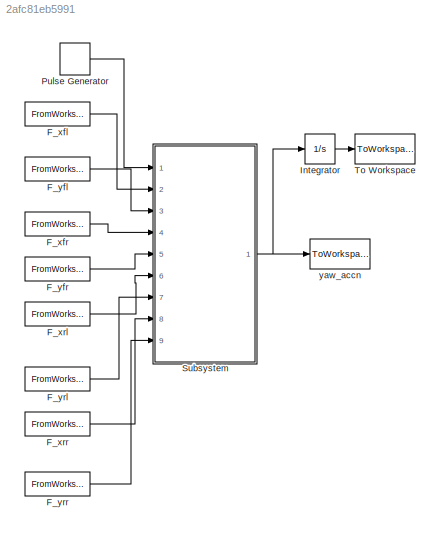
MODEL slx_2afc81eb5991
KIND model
CONFIG AbsTol = auto
CONFIG FixedStep = auto
CONFIG MaxStep = auto
CONFIG MinStep = auto
CONFIG RelTol = 1e-3
CONFIG SampleTimeConstraint = Unconstrained
CONFIG Solver = ode45
CONFIG SolverMode = Auto
CONFIG SolverName = ode45
CONFIG StartTime = 0.0
CONFIG StopTime = 12
BLOCK [FromWorkspace] F_xfl
  SampleTime = 0
  VariableName = F_xfl
  ZeroCross = on
BLOCK [FromWorkspace] F_xfr
  SampleTime = 0
  VariableName = F_xfr
  ZeroCross = on
BLOCK [FromWorkspace] F_xrl
  SampleTime = 0
  VariableName = F_xrl
  ZeroCross = on
BLOCK [FromWorkspace] F_xrr
  SampleTime = 0
  VariableName = F_xrr
  ZeroCross = on
BLOCK [FromWorkspace] F_yfl
  SampleTime = 0
  VariableName = F_yfl
  ZeroCross = on
BLOCK [FromWorkspace] F_yfr
  SampleTime = 0
  VariableName = F_yfr
  ZeroCross = on
BLOCK [FromWorkspace] F_yrl
  SampleTime = 0
  VariableName = F_yrl
  ZeroCross = on
BLOCK [FromWorkspace] F_yrr
  SampleTime = 0
  VariableName = F_yrr
  ZeroCross = on
BLOCK [Integrator] Integrator
  Ports = [1, 1]
BLOCK [DiscretePulseGenerator] Pulse Generator
  Amplitude = 0
  Period = 8
  PhaseDelay = 3
  Ports = [0, 1]
  PulseType = Time based
  PulseWidth = 5
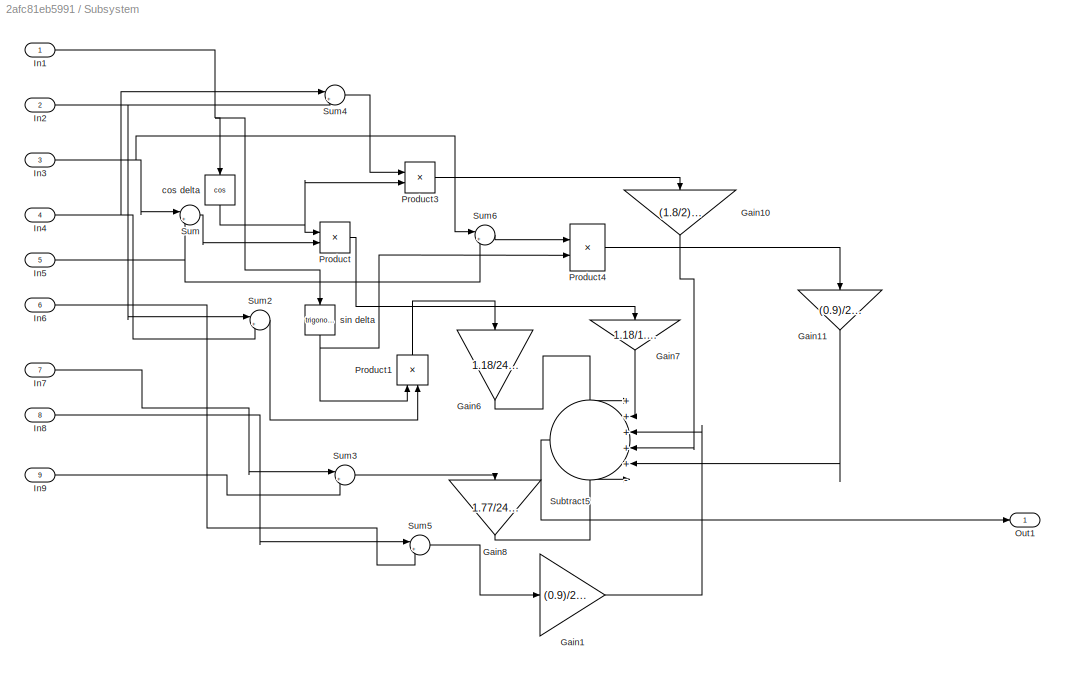
BLOCK [SubSystem] Subsystem
  Ports = [9, 1]
  RequestExecContextInheritance = off
BLOCK [Gain] Subsystem/Gain1
  Gain = (0.9)/2480
  OutDataTypeStr = Inherit: Inherit via internal rule
  ParamDataTypeStr = Inherit: Inherit via internal rule
  SaturateOnIntegerOverflow = off
BLOCK [Gain] Subsystem/Gain10
  Gain = (1.8/2)/2480
  OutDataTypeStr = Inherit: Inherit via internal rule
  ParamDataTypeStr = Inherit: Inherit via internal rule
  SaturateOnIntegerOverflow = off
BLOCK [Gain] Subsystem/Gain11
  Gain = (0.9)/2480
  OutDataTypeStr = Inherit: Inherit via internal rule
  ParamDataTypeStr = Inherit: Inherit via internal rule
  SaturateOnIntegerOverflow = off
BLOCK [Gain] Subsystem/Gain6
  Gain = 1.18/2480
  OutDataTypeStr = Inherit: Inherit via internal rule
  ParamDataTypeStr = Inherit: Inherit via internal rule
  SaturateOnIntegerOverflow = off
BLOCK [Gain] Subsystem/Gain7
  Gain = 1.18/1.77
  OutDataTypeStr = Inherit: Inherit via internal rule
  ParamDataTypeStr = Inherit: Inherit via internal rule
  SaturateOnIntegerOverflow = off
BLOCK [Gain] Subsystem/Gain8
  Gain = 1.77/2480
  OutDataTypeStr = Inherit: Inherit via internal rule
  ParamDataTypeStr = Inherit: Inherit via internal rule
  SaturateOnIntegerOverflow = off
BLOCK [Inport] Subsystem/In1
  IconDisplay = Port number
BLOCK [Inport] Subsystem/In2
  IconDisplay = Port number
  Port = 2
BLOCK [Inport] Subsystem/In3
  IconDisplay = Port number
  Port = 3
BLOCK [Inport] Subsystem/In4
  IconDisplay = Port number
  Port = 4
BLOCK [Inport] Subsystem/In5
  IconDisplay = Port number
  Port = 5
BLOCK [Inport] Subsystem/In6
  IconDisplay = Port number
  Port = 6
BLOCK [Inport] Subsystem/In7
  IconDisplay = Port number
  Port = 7
BLOCK [Inport] Subsystem/In8
  IconDisplay = Port number
  Port = 8
BLOCK [Inport] Subsystem/In9
  IconDisplay = Port number
  Port = 9
BLOCK [Outport] Subsystem/Out1
  IconDisplay = Port number
BLOCK [Product] Subsystem/Product
  InputSameDT = off
  OutDataTypeStr = Inherit: Inherit via internal rule
  Ports = [2, 1]
  RndMeth = Floor
  SaturateOnIntegerOverflow = off
BLOCK [Product] Subsystem/Product1
  InputSameDT = off
  OutDataTypeStr = Inherit: Inherit via internal rule
  Ports = [2, 1]
  RndMeth = Floor
  SaturateOnIntegerOverflow = off
BLOCK [Product] Subsystem/Product3
  InputSameDT = off
  OutDataTypeStr = Inherit: Inherit via internal rule
  Ports = [2, 1]
  RndMeth = Floor
  SaturateOnIntegerOverflow = off
BLOCK [Product] Subsystem/Product4
  InputSameDT = off
  OutDataTypeStr = Inherit: Inherit via internal rule
  Ports = [2, 1]
  RndMeth = Floor
  SaturateOnIntegerOverflow = off
BLOCK [Sum] Subsystem/Subtract5
  IconShape = round
  InputSameDT = off
  Inputs = +++++-
  OutDataTypeStr = Inherit: Inherit via internal rule
  Ports = [6, 1]
  SaturateOnIntegerOverflow = off
BLOCK [Sum] Subsystem/Sum
  IconShape = round
  InputSameDT = off
  Inputs = |++
  OutDataTypeStr = Inherit: Inherit via internal rule
  Ports = [2, 1]
  SaturateOnIntegerOverflow = off
BLOCK [Sum] Subsystem/Sum2
  IconShape = round
  InputSameDT = off
  Inputs = |++
  OutDataTypeStr = Inherit: Inherit via internal rule
  Ports = [2, 1]
  SaturateOnIntegerOverflow = off
BLOCK [Sum] Subsystem/Sum3
  IconShape = round
  InputSameDT = off
  Inputs = |++
  OutDataTypeStr = Inherit: Inherit via internal rule
  Ports = [2, 1]
  SaturateOnIntegerOverflow = off
BLOCK [Sum] Subsystem/Sum4
  IconShape = round
  InputSameDT = off
  Inputs = |+-
  OutDataTypeStr = Inherit: Inherit via internal rule
  Ports = [2, 1]
  SaturateOnIntegerOverflow = off
BLOCK [Sum] Subsystem/Sum5
  IconShape = round
  InputSameDT = off
  Inputs = |+-
  OutDataTypeStr = Inherit: Inherit via internal rule
  Ports = [2, 1]
  SaturateOnIntegerOverflow = off
BLOCK [Sum] Subsystem/Sum6
  IconShape = round
  InputSameDT = off
  Inputs = |+-
  OutDataTypeStr = Inherit: Inherit via internal rule
  Ports = [2, 1]
  SaturateOnIntegerOverflow = off
BLOCK [Trigonometry] Subsystem/cos delta
  Operator = cos
  Ports = [1, 1]
BLOCK [Trigonometry] Subsystem/sin delta 
  Ports = [1, 1]
BLOCK [ToWorkspace] To Workspace
  FixptAsFi = on
  MaxDataPoints = inf
  Ports = [1]
  SampleTime = -1
  Save2DSignal = 3-D array (concatenate along third dimension)
  SaveFormat = Timeseries
  VariableName = yaw_rate
BLOCK [ToWorkspace] yaw_accn
  FixptAsFi = on
  MaxDataPoints = inf
  Ports = [1]
  SampleTime = -1
  Save2DSignal = 3-D array (concatenate along third dimension)
  SaveFormat = Timeseries
  VariableName = yaw_accn
LINE F_xfl:1 -> Subsystem:2
LINE F_xfr:1 -> Subsystem:4
LINE F_xrl:1 -> Subsystem:6
LINE F_xrr:1 -> Subsystem:8
LINE F_yfl:1 -> Subsystem:3
LINE F_yfr:1 -> Subsystem:5
LINE F_yrl:1 -> Subsystem:7
LINE F_yrr:1 -> Subsystem:9
LINE Integrator:1 -> To Workspace:1
LINE Pulse Generator:1 -> Subsystem:1
LINE Subsystem/Gain10:1 -> Subsystem/Subtract5:4
LINE Subsystem/Gain11:1 -> Subsystem/Subtract5:5
LINE Subsystem/Gain1:1 -> Subsystem/Subtract5:3
LINE Subsystem/Gain6:1 -> Subsystem/Subtract5:1
LINE Subsystem/Gain7:1 -> Subsystem/Subtract5:2
LINE Subsystem/Gain8:1 -> Subsystem/Subtract5:6
NET Subsystem/In1:1 -> Subsystem/cos delta:1, Subsystem/sin delta :1
NET Subsystem/In2:1 -> Subsystem/Sum2:1, Subsystem/Sum4:2
NET Subsystem/In3:1 -> Subsystem/Sum6:1, Subsystem/Sum:1
NET Subsystem/In4:1 -> Subsystem/Sum2:2, Subsystem/Sum4:1
NET Subsystem/In5:1 -> Subsystem/Sum6:2, Subsystem/Sum:2
LINE Subsystem/In6:1 -> Subsystem/Sum5:2
LINE Subsystem/In7:1 -> Subsystem/Sum3:1
LINE Subsystem/In8:1 -> Subsystem/Sum5:1
LINE Subsystem/In9:1 -> Subsystem/Sum3:2
LINE Subsystem/Product1:1 -> Subsystem/Gain6:1
LINE Subsystem/Product3:1 -> Subsystem/Gain10:1
LINE Subsystem/Product4:1 -> Subsystem/Gain11:1
LINE Subsystem/Product:1 -> Subsystem/Gain7:1
LINE Subsystem/Subtract5:1 -> Subsystem/Out1:1
LINE Subsystem/Sum2:1 -> Subsystem/Product1:2
LINE Subsystem/Sum3:1 -> Subsystem/Gain8:1
LINE Subsystem/Sum4:1 -> Subsystem/Product3:1
LINE Subsystem/Sum5:1 -> Subsystem/Gain1:1
LINE Subsystem/Sum6:1 -> Subsystem/Product4:1
LINE Subsystem/Sum:1 -> Subsystem/Product:2
NET Subsystem/cos delta:1 -> Subsystem/Product3:2, Subsystem/Product:1
NET Subsystem/sin delta :1 -> Subsystem/Product1:1, Subsystem/Product4:2
NET Subsystem:1 -> Integrator:1, yaw_accn:1
note: NET lines group one-source signal fan-out (src -> all destinations, sorted); 1:1 wires keep LINE
